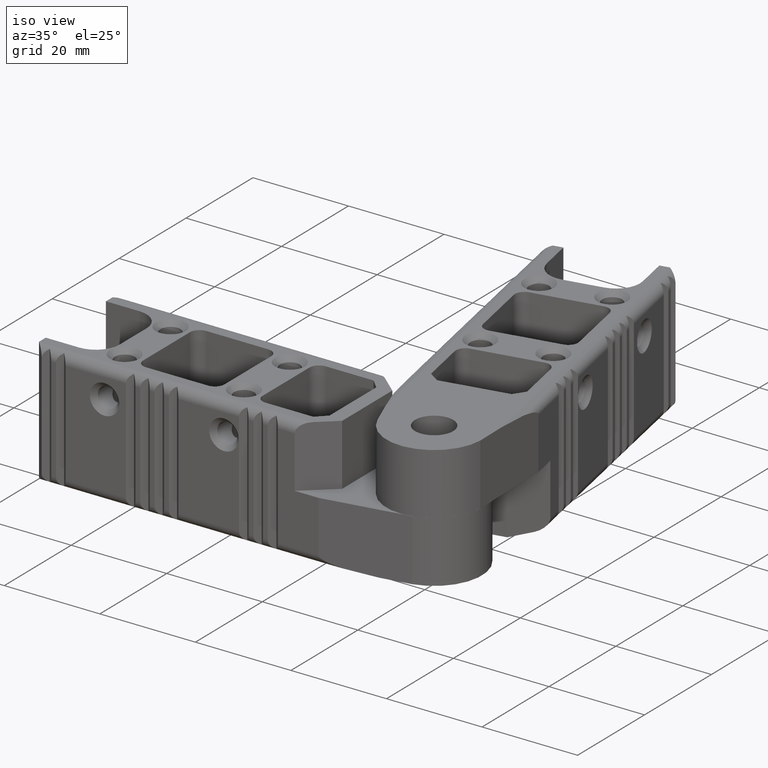
[diagram: clean part render]
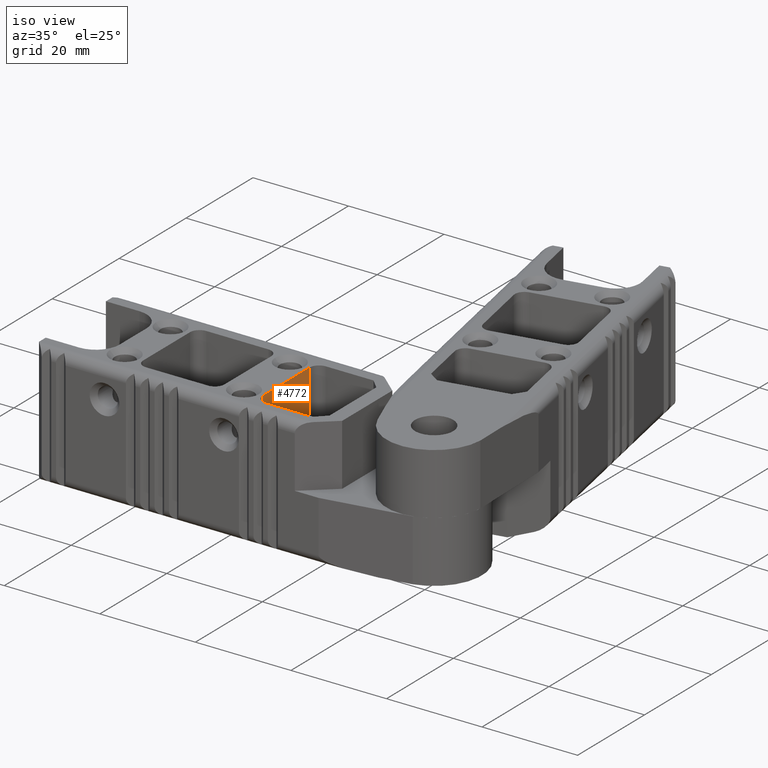
[diagram: same view with one face highlighted and labeled with its STEP entity id]
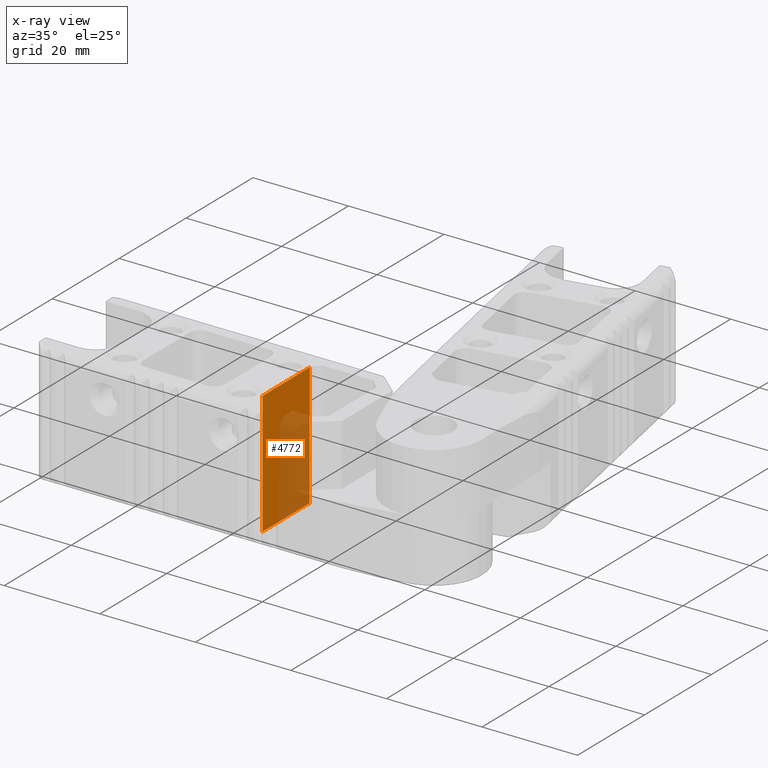
[diagram: x-ray of the same camera — body ghosted, the highlighted face saturated]
A machine part, iso view. The second image highlights one B-rep face of the part: STEP entity #4772.
The next image is the same camera in x-ray: the body ghosted, the highlighted face saturated — about 46% of this face is hidden behind the body in this view.
In plain terms, the highlighted planar face has unit normal (1, 0, -0).
Its self-contained STEP definition (entity closure, byte-faithful):
#93=PLANE('',#5232);
#576=FACE_OUTER_BOUND('',#829,.T.);
#829=EDGE_LOOP('',(#3702,#3703,#3704,#3705));
#1025=LINE('',#7546,#1414);
#1056=LINE('',#7635,#1445);
#1165=LINE('',#8012,#1554);
#1166=LINE('',#8014,#1555);
#1414=VECTOR('',#5796,1000.);
#1445=VECTOR('',#5861,1000.);
#1554=VECTOR('',#6262,1000.);
#1555=VECTOR('',#6265,1000.);
#2001=VERTEX_POINT('',#7543);
#2002=VERTEX_POINT('',#7545);
#2042=VERTEX_POINT('',#7633);
#2043=VERTEX_POINT('',#7634);
#2534=EDGE_CURVE('',#2001,#2002,#1025,.T.);
#2578=EDGE_CURVE('',#2042,#2043,#1056,.T.);
#2769=EDGE_CURVE('',#2042,#2001,#1165,.T.);
#2770=EDGE_CURVE('',#2043,#2002,#1166,.T.);
#3702=ORIENTED_EDGE('',*,*,#2534,.F.);
#3703=ORIENTED_EDGE('',*,*,#2769,.F.);
#3704=ORIENTED_EDGE('',*,*,#2578,.T.);
#3705=ORIENTED_EDGE('',*,*,#2770,.T.);
#4772=ADVANCED_FACE('',(#576),#93,.T.);
#5232=AXIS2_PLACEMENT_3D('',#8013,#6263,#6264);
#5796=DIRECTION('',(5.90617618792189E-15,-1.,-4.02105788955747E-15));
#5861=DIRECTION('',(5.90617618792189E-15,-1.,-4.02105788955747E-15));
#6262=DIRECTION('',(8.9706945392882E-15,-4.02105788955743E-15,-1.));
#6263=DIRECTION('center_axis',(1.,5.90617618792192E-15,-8.97069453928816E-15));
#6264=DIRECTION('ref_axis',(-5.90617618792189E-15,1.,4.02105788955747E-15));
#6265=DIRECTION('',(8.9706945392882E-15,-4.02105788955743E-15,-1.));
#7543=CARTESIAN_POINT('',(-5.01433026733622,23.6958976643065,0.));
#7545=CARTESIAN_POINT('',(-5.01433026733622,9.69589766430712,0.));
#7546=CARTESIAN_POINT('',(-5.01433026733622,23.6958976643065,0.));
#7633=CARTESIAN_POINT('',(-5.01433026733622,23.6958976643062,25.6999999999996));
#7634=CARTESIAN_POINT('',(-5.01433026733622,9.6958976643069,25.6999999999996));
#7635=CARTESIAN_POINT('',(-5.01433026733622,23.6958976643062,25.6999999999996));
#8012=CARTESIAN_POINT('',(-5.01433026733622,23.6958976643062,25.6999999999996));
#8013=CARTESIAN_POINT('Origin',(-5.01433026733622,23.6958976643062,25.6999999999996));
#8014=CARTESIAN_POINT('',(-5.01433026733622,9.6958976643069,25.6999999999996));